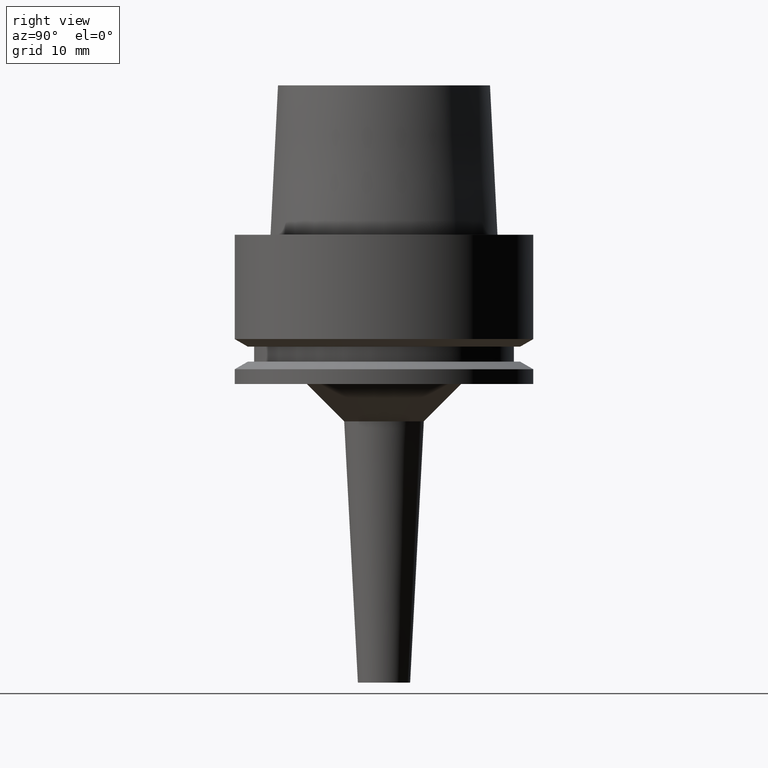
[diagram: clean part render]
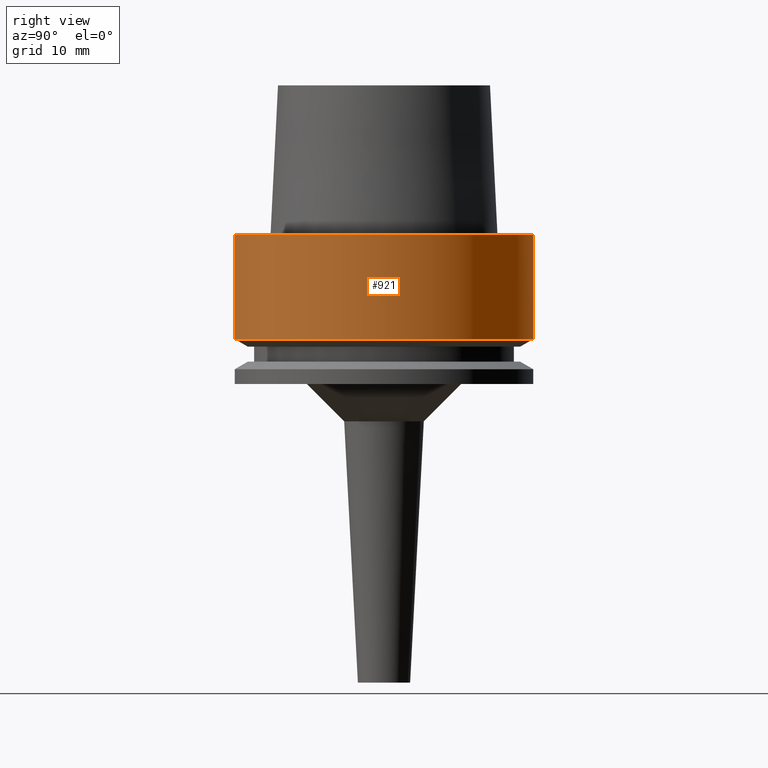
[diagram: same view with one face highlighted and labeled with its STEP entity id]
A machine part, right view. The second image highlights one B-rep face of the part: STEP entity #921.
In plain terms, the highlighted cylindrical surface (partial cylindrical patch) has radius 20 mm, axis along (0, 0, 1).
Its self-contained STEP definition (entity closure, byte-faithful):
#72=CARTESIAN_POINT('',(0.E0,0.E0,0.E0));
#73=DIRECTION('',(0.E0,0.E0,-1.E0));
#74=DIRECTION('',(0.E0,1.E0,0.E0));
#75=AXIS2_PLACEMENT_3D('',#72,#73,#74);
#96=DIRECTION('',(0.E0,-2.439758400999E-14,-1.E0));
#97=VECTOR('',#96,1.397927405538E1);
#98=CARTESIAN_POINT('',(0.E0,-2.E1,0.E0));
#99=LINE('',#98,#97);
#103=DIRECTION('',(0.E0,2.439758400999E-14,-1.E0));
#104=VECTOR('',#103,1.397927405538E1);
#105=CARTESIAN_POINT('',(0.E0,2.E1,0.E0));
#106=LINE('',#105,#104);
#117=CARTESIAN_POINT('',(0.E0,0.E0,-1.397927405538E1));
#118=DIRECTION('',(0.E0,0.E0,1.E0));
#119=DIRECTION('',(0.E0,-1.E0,0.E0));
#120=AXIS2_PLACEMENT_3D('',#117,#118,#119);
#732=CARTESIAN_POINT('',(0.E0,-2.E1,0.E0));
#733=CARTESIAN_POINT('',(0.E0,2.E1,0.E0));
#734=VERTEX_POINT('',#732);
#735=VERTEX_POINT('',#733);
#736=CARTESIAN_POINT('',(0.E0,2.E1,-1.397927405538E1));
#737=VERTEX_POINT('',#736);
#738=CARTESIAN_POINT('',(0.E0,-2.E1,-1.397927405538E1));
#739=VERTEX_POINT('',#738);
#909=CARTESIAN_POINT('',(0.E0,0.E0,-6.4E1));
#910=DIRECTION('',(0.E0,0.E0,1.E0));
#911=DIRECTION('',(0.E0,1.E0,0.E0));
#912=AXIS2_PLACEMENT_3D('',#909,#910,#911);
#913=CYLINDRICAL_SURFACE('',#912,2.E1);
#914=ORIENTED_EDGE('',*,*,#899,.T.);
#916=ORIENTED_EDGE('',*,*,#915,.F.);
#917=ORIENTED_EDGE('',*,*,#902,.F.);
#918=ORIENTED_EDGE('',*,*,#885,.F.);
#919=EDGE_LOOP('',(#914,#916,#917,#918));
#920=FACE_OUTER_BOUND('',#919,.F.);
#76=CIRCLE('',#75,2.E1);
#121=CIRCLE('',#120,2.E1);
#885=EDGE_CURVE('',#735,#734,#76,.T.);
#899=EDGE_CURVE('',#735,#737,#106,.T.);
#902=EDGE_CURVE('',#734,#739,#99,.T.);
#915=EDGE_CURVE('',#739,#737,#121,.T.);
#921=ADVANCED_FACE('',(#920),#913,.T.);